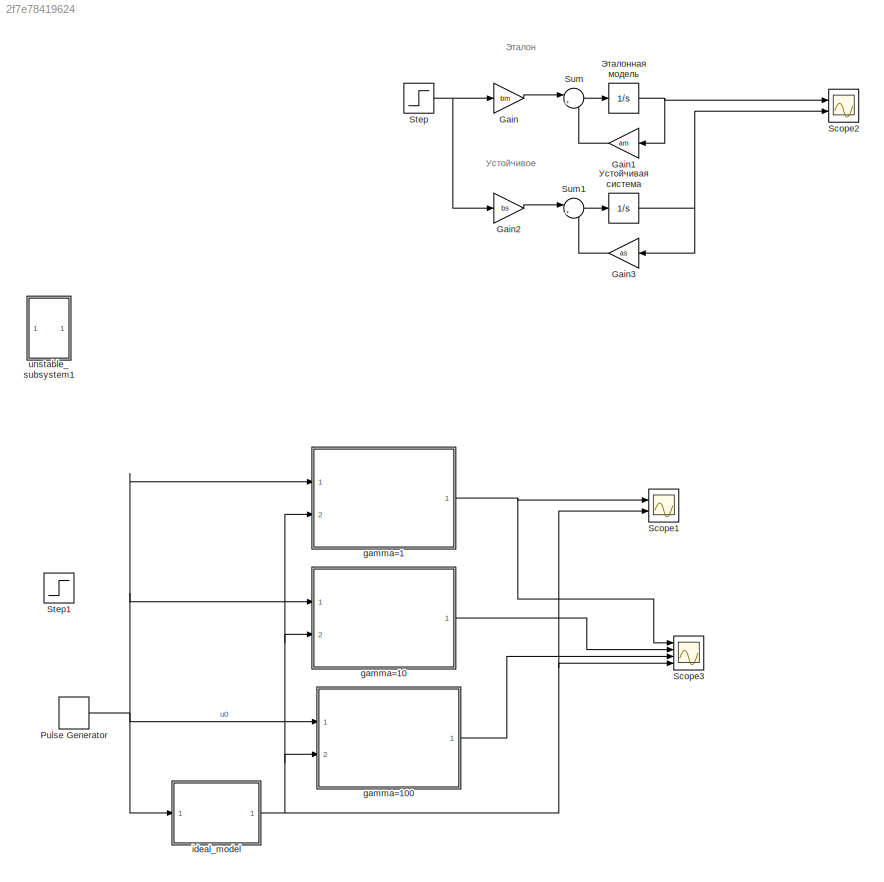
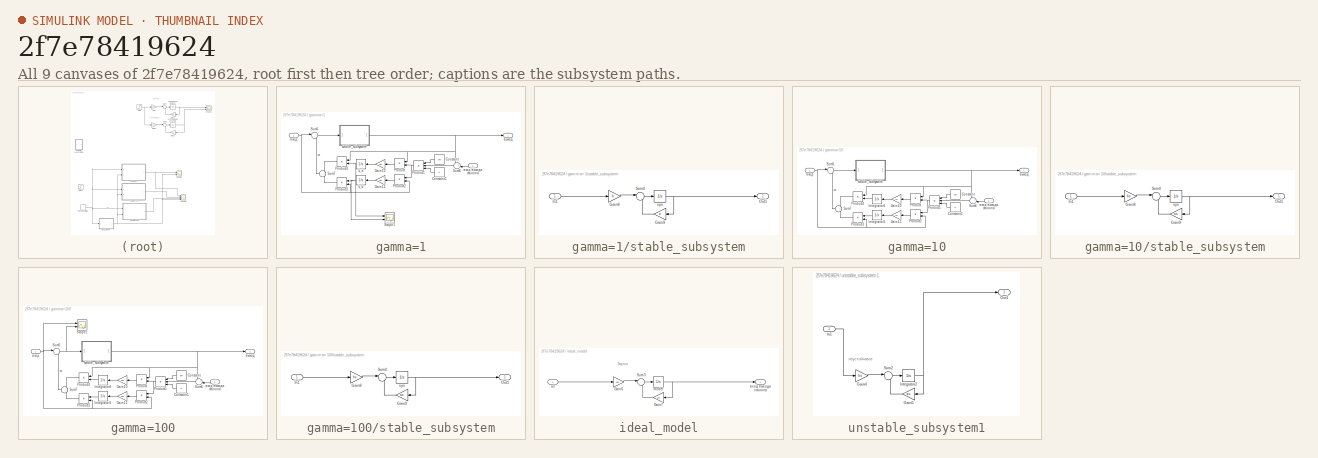
[diagram: thumbnail index - all 9 canvases of the model, root first then tree order]
MODEL slx_2f7e78419624
KIND model
CONFIG AbsTol = auto
CONFIG EnableMultiTasking = off
CONFIG FixedStep = auto
CONFIG MaxStep = 1e-2
CONFIG MinStep = auto
CONFIG RelTol = 1e-3
CONFIG SampleTimeConstraint = Unconstrained
CONFIG SolverName = VariableStepAuto
CONFIG StartTime = 0.0
CONFIG StopTime = 15
BLOCK [Gain] Gain
  Commented = on
  Gain = bm
BLOCK [Gain] Gain1
  Commented = on
  Gain = am
  NameLocation = top
BLOCK [Gain] Gain2
  Commented = on
  Gain = bs
BLOCK [Gain] Gain3
  Commented = on
  Gain = as
  NameLocation = top
BLOCK [DiscretePulseGenerator] Pulse Generator
  Period = 5
  Ports = [0, 1]
  PulseType = Time based
  PulseWidth = 50
BLOCK [Scope] Scope1
  Floating = off
  NumInputPorts = 2
  Ports = [2]
  ScopeSpecificationString = Simulink.scopes.TimeScopeBlockCfg('CurrentConfiguration', extmgr.ConfigurationSet(extmgr.Configuration('Core','General UI',true,'FigureColor',[1 1 1]),extmgr.Configuration('Core','Source UI',true),extmgr.Configuration('Sources','WiredSimulink',true,'DataLoggingVariableName','ScopeData1'),extmgr.Configuration('Visuals','Time Domain',true,'SerializedDisplays',{struct('MinYLimReal','-0.12938','MaxYLi...<+1632ch>
BLOCK [Scope] Scope2
  Commented = on
  Floating = off
  NumInputPorts = 2
  Ports = [2]
  ScopeSpecificationString = Simulink.scopes.TimeScopeBlockCfg('CurrentConfiguration', extmgr.ConfigurationSet(extmgr.Configuration('Core','General UI',true,'FigureColor',[1 1 1]),extmgr.Configuration('Core','Source UI',true),extmgr.Configuration('Sources','WiredSimulink',true,'DataLoggingVariableName','ScopeData1'),extmgr.Configuration('Visuals','Time Domain',true,'SerializedDisplays',{struct('MinYLimReal','-0.24245','MaxYLi...<+1649ch>
BLOCK [Scope] Scope3
  Floating = off
  NumInputPorts = 4
  Ports = [4]
  ScopeSpecificationString = Simulink.scopes.TimeScopeBlockCfg('CurrentConfiguration', extmgr.ConfigurationSet(extmgr.Configuration('Core','General UI',true,'FigureColor',[1 1 1]),extmgr.Configuration('Core','Source UI',true),extmgr.Configuration('Sources','WiredSimulink',true,'DataLoggingVariableName','ScopeData2'),extmgr.Configuration('Visuals','Time Domain',true,'SerializedDisplays',{struct('MinYLimReal','-0.17846','MaxYLi...<+1656ch>
BLOCK [Step] Step
  Commented = on
  SampleTime = 0
  Time = 0
BLOCK [Step] Step1
  Commented = on
  SampleTime = 0
  Time = 0
BLOCK [Sum] Sum
  Commented = on
  Inputs = |++
  Ports = [2, 1]
BLOCK [Sum] Sum1
  Commented = on
  Inputs = |++
  Ports = [2, 1]
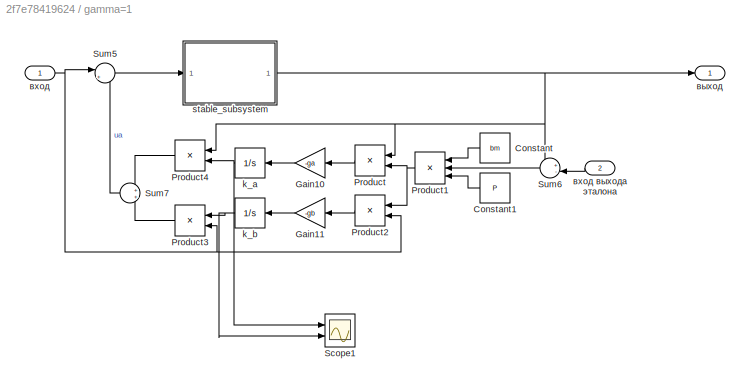
BLOCK [SubSystem] gamma=1
  Ports = [2, 1]
  RequestExecContextInheritance = off
BLOCK [Constant] gamma=1/Constant
  NameLocation = top
  Value = bm
BLOCK [Constant] gamma=1/Constant1
  NameLocation = top
  Value = P
BLOCK [Gain] gamma=1/Gain10
  Gain = -ga
  NameLocation = top
BLOCK [Gain] gamma=1/Gain11
  Gain = -gb
  NameLocation = top
BLOCK [Product] gamma=1/Product
  NameLocation = top
  Ports = [2, 1]
BLOCK [Product] gamma=1/Product1
  Inputs = 3
  NameLocation = top
  Ports = [3, 1]
BLOCK [Product] gamma=1/Product2
  NameLocation = top
  Ports = [2, 1]
BLOCK [Product] gamma=1/Product3
  NameLocation = top
  Ports = [2, 1]
BLOCK [Product] gamma=1/Product4
  NameLocation = top
  Ports = [2, 1]
BLOCK [Scope] gamma=1/Scope1
  Floating = off
  NumInputPorts = 2
  Ports = [2]
  ScopeSpecificationString = Simulink.scopes.TimeScopeBlockCfg('CurrentConfiguration', extmgr.ConfigurationSet(extmgr.Configuration('Core','General UI',true,'FigureColor',[1 1 1]),extmgr.Configuration('Core','Source UI',true),extmgr.Configuration('Sources','WiredSimulink',true,'DataLoggingVariableName','ScopeData1'),extmgr.Configuration('Visuals','Time Domain',true,'SerializedDisplays',{struct('MinYLimReal','-8.18581','MaxYLi...<+1788ch>
BLOCK [Sum] gamma=1/Sum5
  Inputs = |++
  Ports = [2, 1]
BLOCK [Sum] gamma=1/Sum6
  Inputs = +-|
  NameLocation = top
  Ports = [2, 1]
BLOCK [Sum] gamma=1/Sum7
  NameLocation = top
  Ports = [2, 1]
BLOCK [Integrator] gamma=1/k_a
  NameLocation = top
  Ports = [1, 1]
BLOCK [Integrator] gamma=1/k_b
  NameLocation = top
  Ports = [1, 1]
BLOCK [SubSystem] gamma=1/stable_subsystem
  Ports = [1, 1]
  RequestExecContextInheritance = off
BLOCK [Gain] gamma=1/stable_subsystem/Gain8
  Gain = b
BLOCK [Gain] gamma=1/stable_subsystem/Gain9
  Gain = a
  NameLocation = top
BLOCK [Inport] gamma=1/stable_subsystem/In1
BLOCK [Outport] gamma=1/stable_subsystem/Out1
BLOCK [Sum] gamma=1/stable_subsystem/Sum4
  Inputs = |++
  Ports = [2, 1]
BLOCK [Integrator] gamma=1/stable_subsystem/sys
  Ports = [1, 1]
BLOCK [Inport] gamma=1/вход
BLOCK [Inport] gamma=1/вход выхода эталона
  Port = 2
BLOCK [Outport] gamma=1/выход
BLOCK [SubSystem] gamma=10
  Commented = on
  Ports = [2, 1]
  RequestExecContextInheritance = off
BLOCK [Constant] gamma=10/Constant
  NameLocation = top
  Value = bm
BLOCK [Constant] gamma=10/Constant1
  NameLocation = top
  Value = P
BLOCK [Gain] gamma=10/Gain10
  Gain = -10
  NameLocation = top
BLOCK [Gain] gamma=10/Gain11
  Gain = -10
  NameLocation = top
BLOCK [Integrator] gamma=10/Integrator5
  NameLocation = top
  Ports = [1, 1]
BLOCK [Integrator] gamma=10/Integrator6
  NameLocation = top
  Ports = [1, 1]
BLOCK [Product] gamma=10/Product
  NameLocation = top
  Ports = [2, 1]
BLOCK [Product] gamma=10/Product1
  Inputs = 3
  NameLocation = top
  Ports = [3, 1]
BLOCK [Product] gamma=10/Product2
  NameLocation = top
  Ports = [2, 1]
BLOCK [Product] gamma=10/Product3
  NameLocation = top
  Ports = [2, 1]
BLOCK [Product] gamma=10/Product4
  NameLocation = top
  Ports = [2, 1]
BLOCK [Sum] gamma=10/Sum5
  Inputs = |++
  Ports = [2, 1]
BLOCK [Sum] gamma=10/Sum6
  Inputs = +-|
  NameLocation = top
  Ports = [2, 1]
BLOCK [Sum] gamma=10/Sum7
  NameLocation = top
  Ports = [2, 1]
BLOCK [SubSystem] gamma=10/stable_subsystem
  Ports = [1, 1]
  RequestExecContextInheritance = off
BLOCK [Gain] gamma=10/stable_subsystem/Gain8
  Gain = bs
BLOCK [Gain] gamma=10/stable_subsystem/Gain9
  Gain = as
  NameLocation = top
BLOCK [Inport] gamma=10/stable_subsystem/In1
BLOCK [Outport] gamma=10/stable_subsystem/Out1
BLOCK [Sum] gamma=10/stable_subsystem/Sum4
  Inputs = |++
  Ports = [2, 1]
BLOCK [Integrator] gamma=10/stable_subsystem/sys
  Ports = [1, 1]
BLOCK [Inport] gamma=10/вход
BLOCK [Inport] gamma=10/вход выхода эталона
  Port = 2
BLOCK [Outport] gamma=10/выход
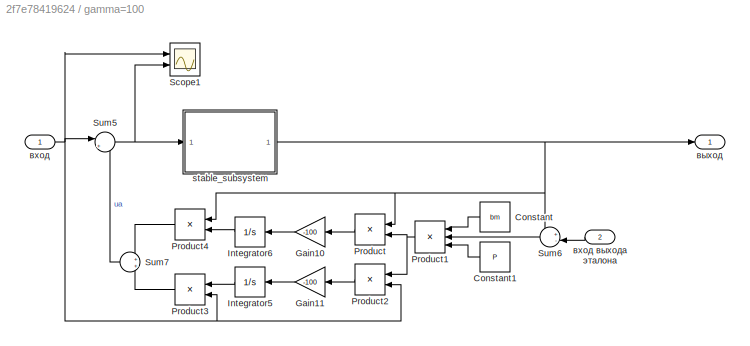
BLOCK [SubSystem] gamma=100
  Commented = on
  Ports = [2, 1]
  RequestExecContextInheritance = off
BLOCK [Constant] gamma=100/Constant
  NameLocation = top
  Value = bm
BLOCK [Constant] gamma=100/Constant1
  NameLocation = top
  Value = P
BLOCK [Gain] gamma=100/Gain10
  Gain = -100
  NameLocation = top
BLOCK [Gain] gamma=100/Gain11
  Gain = -100
  NameLocation = top
BLOCK [Integrator] gamma=100/Integrator5
  NameLocation = top
  Ports = [1, 1]
BLOCK [Integrator] gamma=100/Integrator6
  NameLocation = top
  Ports = [1, 1]
BLOCK [Product] gamma=100/Product
  NameLocation = top
  Ports = [2, 1]
BLOCK [Product] gamma=100/Product1
  Inputs = 3
  NameLocation = top
  Ports = [3, 1]
BLOCK [Product] gamma=100/Product2
  NameLocation = top
  Ports = [2, 1]
BLOCK [Product] gamma=100/Product3
  NameLocation = top
  Ports = [2, 1]
BLOCK [Product] gamma=100/Product4
  NameLocation = top
  Ports = [2, 1]
BLOCK [Scope] gamma=100/Scope1
  Floating = off
  NumInputPorts = 2
  Ports = [2]
  ScopeSpecificationString = Simulink.scopes.TimeScopeBlockCfg('CurrentConfiguration', extmgr.ConfigurationSet(extmgr.Configuration('Core','General UI',true,'FigureColor',[1 1 1]),extmgr.Configuration('Core','Source UI',true),extmgr.Configuration('Sources','WiredSimulink',true,'DataLoggingVariableName','ScopeData3'),extmgr.Configuration('Visuals','Time Domain',true,'SerializedDisplays',{struct('MinYLimReal','-3.61931','MaxYLi...<+1623ch>
BLOCK [Sum] gamma=100/Sum5
  Inputs = |++
  Ports = [2, 1]
BLOCK [Sum] gamma=100/Sum6
  Inputs = +-|
  NameLocation = top
  Ports = [2, 1]
BLOCK [Sum] gamma=100/Sum7
  NameLocation = top
  Ports = [2, 1]
BLOCK [SubSystem] gamma=100/stable_subsystem
  Ports = [1, 1]
  RequestExecContextInheritance = off
BLOCK [Gain] gamma=100/stable_subsystem/Gain8
  Gain = bs
BLOCK [Gain] gamma=100/stable_subsystem/Gain9
  Gain = as
  NameLocation = top
BLOCK [Inport] gamma=100/stable_subsystem/In1
BLOCK [Outport] gamma=100/stable_subsystem/Out1
BLOCK [Sum] gamma=100/stable_subsystem/Sum4
  Inputs = |++
  Ports = [2, 1]
BLOCK [Integrator] gamma=100/stable_subsystem/sys
  Ports = [1, 1]
BLOCK [Inport] gamma=100/вход
BLOCK [Inport] gamma=100/вход выхода эталона
  Port = 2
BLOCK [Outport] gamma=100/выход
BLOCK [SubSystem] ideal_model
  Ports = [1, 1]
  RequestExecContextInheritance = off
BLOCK [Gain] ideal_model/Gain6
  Gain = bm
BLOCK [Gain] ideal_model/Gain7
  Gain = am
  NameLocation = top
BLOCK [Sum] ideal_model/Sum3
  Inputs = |++
  Ports = [2, 1]
BLOCK [Integrator] ideal_model/model
  Ports = [1, 1]
BLOCK [Inport] ideal_model/u0
BLOCK [Outport] ideal_model/вход выхода эталона
BLOCK [SubSystem] unstable_subsystem1
  Commented = on
  Ports = [1, 1]
  RequestExecContextInheritance = off
BLOCK [Gain] unstable_subsystem1/Gain4
  Commented = on
  Gain = bu
BLOCK [Gain] unstable_subsystem1/Gain5
  Commented = on
  Gain = au
  NameLocation = top
BLOCK [Inport] unstable_subsystem1/In1
BLOCK [Integrator] unstable_subsystem1/Integrator2
  Commented = on
  Ports = [1, 1]
BLOCK [Outport] unstable_subsystem1/Out1
BLOCK [Sum] unstable_subsystem1/Sum2
  Commented = on
  Inputs = |++
  Ports = [2, 1]
BLOCK [Integrator] Устойчивая система
  Commented = on
  Ports = [1, 1]
BLOCK [Integrator] Эталонная модель
  Commented = on
  Ports = [1, 1]
ANNOTATION (root): Устойчивое
ANNOTATION (root): Эталон
ANNOTATION ideal_model: Эталон
ANNOTATION unstable_subsystem1: неустойчивое
LINE Gain1:1 -> Sum:2
LINE Gain2:1 -> Sum1:1
LINE Gain3:1 -> Sum1:2
LINE Gain:1 -> Sum:1
NET Pulse Generator:1 -> gamma=100:1, gamma=10:1, gamma=1:1, ideal_model:1
NET Step:1 -> Gain2:1, Gain:1
LINE Sum1:1 -> Устойчивая система:1
LINE Sum:1 -> Эталонная модель:1
LINE gamma=1/Constant1:1 -> gamma=1/Product1:3
LINE gamma=1/Constant:1 -> gamma=1/Product1:1
LINE gamma=1/Gain10:1 -> gamma=1/k_a:1
LINE gamma=1/Gain11:1 -> gamma=1/k_b:1
NET gamma=1/Product1:1 -> gamma=1/Product2:1, gamma=1/Product:2
LINE gamma=1/Product2:1 -> gamma=1/Gain11:1
LINE gamma=1/Product3:1 -> gamma=1/Sum7:2
LINE gamma=1/Product4:1 -> gamma=1/Sum7:1
LINE gamma=1/Product:1 -> gamma=1/Gain10:1
LINE gamma=1/Sum5:1 -> gamma=1/stable_subsystem:1
LINE gamma=1/Sum6:1 -> gamma=1/Product1:2
LINE gamma=1/Sum7:1 -> gamma=1/Sum5:2
NET gamma=1/k_a:1 -> gamma=1/Product4:2, gamma=1/Scope1:1
NET gamma=1/k_b:1 -> gamma=1/Product3:1, gamma=1/Scope1:2
LINE gamma=1/stable_subsystem/Gain8:1 -> gamma=1/stable_subsystem/Sum4:1
LINE gamma=1/stable_subsystem/Gain9:1 -> gamma=1/stable_subsystem/Sum4:2
LINE gamma=1/stable_subsystem/In1:1 -> gamma=1/stable_subsystem/Gain8:1
LINE gamma=1/stable_subsystem/Sum4:1 -> gamma=1/stable_subsystem/sys:1
NET gamma=1/stable_subsystem/sys:1 -> gamma=1/stable_subsystem/Gain9:1, gamma=1/stable_subsystem/Out1:1
NET gamma=1/stable_subsystem:1 -> gamma=1/Product4:1, gamma=1/Product:1, gamma=1/Sum6:1, gamma=1/выход:1
LINE gamma=1/вход выхода эталона:1 -> gamma=1/Sum6:2
NET gamma=1/вход:1 -> gamma=1/Product2:2, gamma=1/Product3:2, gamma=1/Sum5:1
LINE gamma=10/Constant1:1 -> gamma=10/Product1:3
LINE gamma=10/Constant:1 -> gamma=10/Product1:1
LINE gamma=10/Gain10:1 -> gamma=10/Integrator6:1
LINE gamma=10/Gain11:1 -> gamma=10/Integrator5:1
LINE gamma=10/Integrator5:1 -> gamma=10/Product3:1
LINE gamma=10/Integrator6:1 -> gamma=10/Product4:2
NET gamma=10/Product1:1 -> gamma=10/Product2:1, gamma=10/Product:2
LINE gamma=10/Product2:1 -> gamma=10/Gain11:1
LINE gamma=10/Product3:1 -> gamma=10/Sum7:2
LINE gamma=10/Product4:1 -> gamma=10/Sum7:1
LINE gamma=10/Product:1 -> gamma=10/Gain10:1
LINE gamma=10/Sum5:1 -> gamma=10/stable_subsystem:1
LINE gamma=10/Sum6:1 -> gamma=10/Product1:2
LINE gamma=10/Sum7:1 -> gamma=10/Sum5:2
LINE gamma=10/stable_subsystem/Gain8:1 -> gamma=10/stable_subsystem/Sum4:1
LINE gamma=10/stable_subsystem/Gain9:1 -> gamma=10/stable_subsystem/Sum4:2
LINE gamma=10/stable_subsystem/In1:1 -> gamma=10/stable_subsystem/Gain8:1
LINE gamma=10/stable_subsystem/Sum4:1 -> gamma=10/stable_subsystem/sys:1
NET gamma=10/stable_subsystem/sys:1 -> gamma=10/stable_subsystem/Gain9:1, gamma=10/stable_subsystem/Out1:1
NET gamma=10/stable_subsystem:1 -> gamma=10/Product4:1, gamma=10/Product:1, gamma=10/Sum6:1, gamma=10/выход:1
LINE gamma=10/вход выхода эталона:1 -> gamma=10/Sum6:2
NET gamma=10/вход:1 -> gamma=10/Product2:2, gamma=10/Product3:2, gamma=10/Sum5:1
LINE gamma=100/Constant1:1 -> gamma=100/Product1:3
LINE gamma=100/Constant:1 -> gamma=100/Product1:1
LINE gamma=100/Gain10:1 -> gamma=100/Integrator6:1
LINE gamma=100/Gain11:1 -> gamma=100/Integrator5:1
LINE gamma=100/Integrator5:1 -> gamma=100/Product3:1
LINE gamma=100/Integrator6:1 -> gamma=100/Product4:2
NET gamma=100/Product1:1 -> gamma=100/Product2:1, gamma=100/Product:2
LINE gamma=100/Product2:1 -> gamma=100/Gain11:1
LINE gamma=100/Product3:1 -> gamma=100/Sum7:2
LINE gamma=100/Product4:1 -> gamma=100/Sum7:1
LINE gamma=100/Product:1 -> gamma=100/Gain10:1
NET gamma=100/Sum5:1 -> gamma=100/Scope1:2, gamma=100/stable_subsystem:1
LINE gamma=100/Sum6:1 -> gamma=100/Product1:2
LINE gamma=100/Sum7:1 -> gamma=100/Sum5:2
LINE gamma=100/stable_subsystem/Gain8:1 -> gamma=100/stable_subsystem/Sum4:1
LINE gamma=100/stable_subsystem/Gain9:1 -> gamma=100/stable_subsystem/Sum4:2
LINE gamma=100/stable_subsystem/In1:1 -> gamma=100/stable_subsystem/Gain8:1
LINE gamma=100/stable_subsystem/Sum4:1 -> gamma=100/stable_subsystem/sys:1
NET gamma=100/stable_subsystem/sys:1 -> gamma=100/stable_subsystem/Gain9:1, gamma=100/stable_subsystem/Out1:1
NET gamma=100/stable_subsystem:1 -> gamma=100/Product4:1, gamma=100/Product:1, gamma=100/Sum6:1, gamma=100/выход:1
LINE gamma=100/вход выхода эталона:1 -> gamma=100/Sum6:2
NET gamma=100/вход:1 -> gamma=100/Product2:2, gamma=100/Product3:2, gamma=100/Scope1:1, gamma=100/Sum5:1
LINE gamma=100:1 -> Scope3:3
LINE gamma=10:1 -> Scope3:2
NET gamma=1:1 -> Scope1:1, Scope3:1
LINE ideal_model/Gain6:1 -> ideal_model/Sum3:1
LINE ideal_model/Gain7:1 -> ideal_model/Sum3:2
LINE ideal_model/Sum3:1 -> ideal_model/model:1
NET ideal_model/model:1 -> ideal_model/Gain7:1, ideal_model/вход выхода эталона:1
LINE ideal_model/u0:1 -> ideal_model/Gain6:1
NET ideal_model:1 -> Scope1:2, Scope3:4, gamma=100:2, gamma=10:2, gamma=1:2
LINE unstable_subsystem1/Gain4:1 -> unstable_subsystem1/Sum2:1
LINE unstable_subsystem1/Gain5:1 -> unstable_subsystem1/Sum2:2
LINE unstable_subsystem1/In1:1 -> unstable_subsystem1/Gain4:1
NET unstable_subsystem1/Integrator2:1 -> unstable_subsystem1/Gain5:1, unstable_subsystem1/Out1:1
LINE unstable_subsystem1/Sum2:1 -> unstable_subsystem1/Integrator2:1
NET Устойчивая система:1 -> Gain3:1, Scope2:2
NET Эталонная модель:1 -> Gain1:1, Scope2:1
note: NET lines group one-source signal fan-out (src -> all destinations, sorted); 1:1 wires keep LINE
